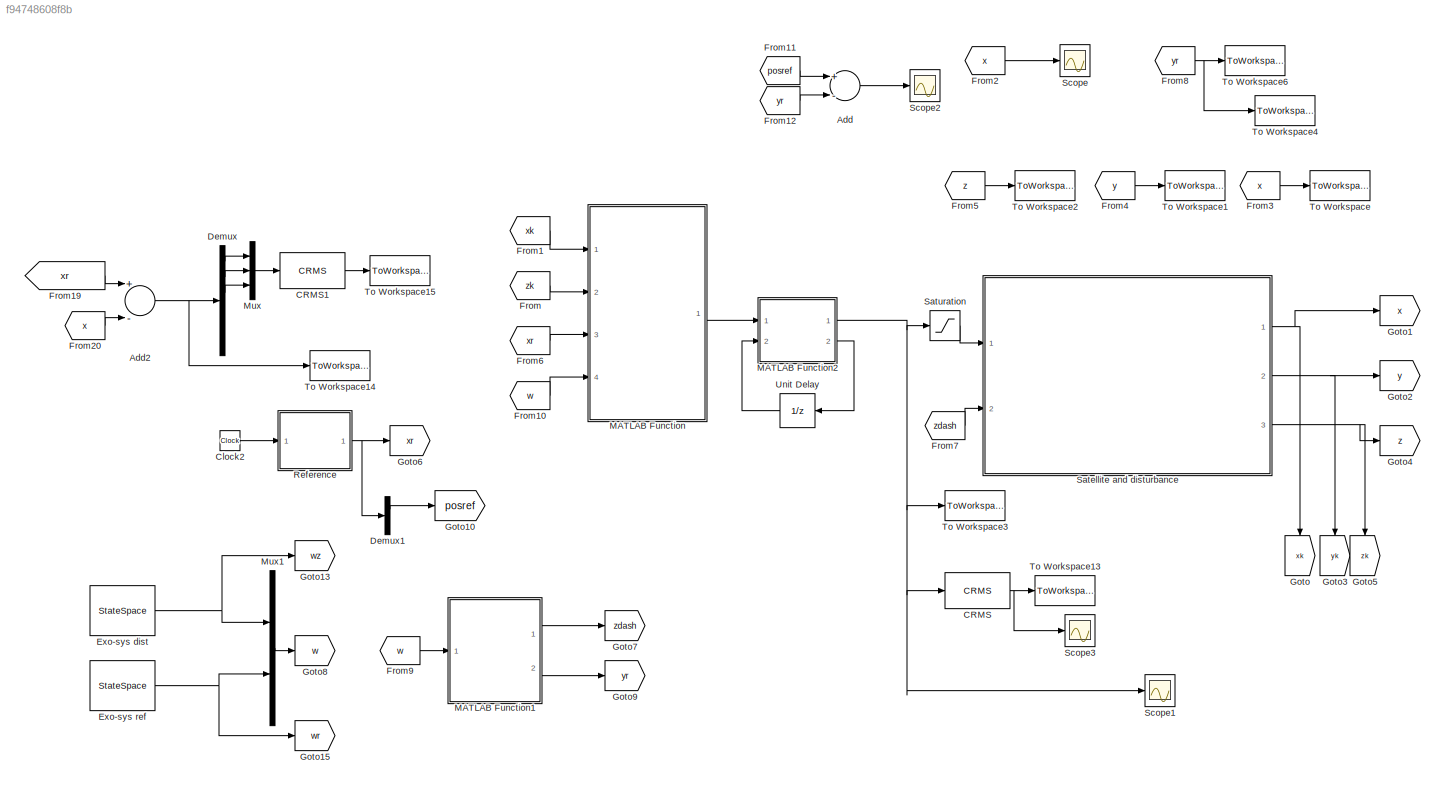
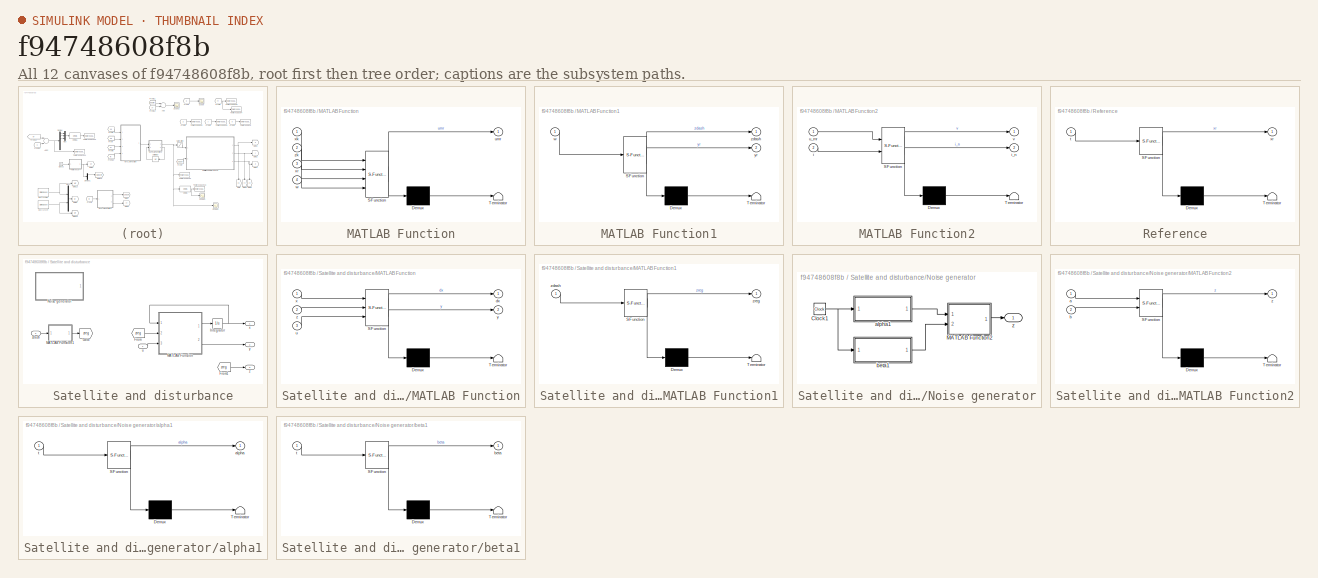
[diagram: thumbnail index - all 12 canvases of the model, root first then tree order]
MODEL slx_f94748608f8b
KIND model
CONFIG AbsTol = auto
CONFIG EnableMultiTasking = off
CONFIG FixedStep = 10^-4
CONFIG MaxStep = auto
CONFIG MinStep = auto
CONFIG RelTol = 1e-3
CONFIG SampleTimeConstraint = Unconstrained
CONFIG Solver = VariableStepAuto
CONFIG SolverName = VariableStepAuto
CONFIG StartTime = 0.0
CONFIG StopTime = simTime
BLOCK [Sum] Add
  InputSameDT = off
  Inputs = +-
  OutDataTypeStr = Inherit: Inherit via internal rule
  Ports = [2, 1]
  SaturateOnIntegerOverflow = off
BLOCK [Sum] Add2
  InputSameDT = off
  Inputs = +-
  OutDataTypeStr = Inherit: Inherit via internal rule
  Ports = [2, 1]
  SaturateOnIntegerOverflow = off
BLOCK [Reference] CRMS  REF=sdolib/RMS Blocks/CRMS
  Ports = [1, 1]
  SourceBlock = sdolib/RMS Blocks/CRMS
  SourceProductBaseCode = SO
  SourceProductName = Simulink Design Optimization
  SourceType = Continuous RMS Value Block
BLOCK [Reference] CRMS1  REF=sdolib/RMS Blocks/CRMS
  Ports = [1, 1]
  SourceBlock = sdolib/RMS Blocks/CRMS
  SourceProductBaseCode = SO
  SourceProductName = Simulink Design Optimization
  SourceType = Continuous RMS Value Block
BLOCK [Clock] Clock2
BLOCK [Demux] Demux
  DisplayOption = bar
  Outputs = 6
  Ports = [1, 6]
BLOCK [Demux] Demux1
  DisplayOption = bar
  Outputs = [3 3]
  Ports = [1, 2]
BLOCK [StateSpace] Exo-sys dist
  A = [0 -1;1 0]
  B = [0;0]
  C = eye(2)
  D = zeros(2,1)
  InitialCondition = [1;0]
  Ports = [1, 1]
BLOCK [StateSpace] Exo-sys ref 
  A = [0 -Omega;Omega 0]
  B = [0;0]
  C = eye(2)
  D = zeros(2,1)
  InitialCondition = [1;0]
  Ports = [1, 1]
BLOCK [From] From
  GotoTag = zk
BLOCK [From] From1
  GotoTag = xk
BLOCK [From] From10
  GotoTag = w
BLOCK [From] From11
  GotoTag = posref
BLOCK [From] From12
  GotoTag = yr
BLOCK [From] From19
  GotoTag = xr
BLOCK [From] From2
  GotoTag = x
BLOCK [From] From20
  GotoTag = x
BLOCK [From] From3
  GotoTag = x
BLOCK [From] From4
  GotoTag = y
BLOCK [From] From5
  GotoTag = z
BLOCK [From] From6
  GotoTag = xr
BLOCK [From] From7
  GotoTag = zdash
BLOCK [From] From8
  GotoTag = yr
BLOCK [From] From9
  GotoTag = w
BLOCK [Goto] Goto
  GotoTag = xk
BLOCK [Goto] Goto1
  GotoTag = x
BLOCK [Goto] Goto10
  GotoTag = posref
BLOCK [Goto] Goto13
  GotoTag = wz
BLOCK [Goto] Goto15
  GotoTag = wr
BLOCK [Goto] Goto2
  GotoTag = y
BLOCK [Goto] Goto3
  GotoTag = yk
BLOCK [Goto] Goto4
  GotoTag = z
BLOCK [Goto] Goto5
  GotoTag = zk
BLOCK [Goto] Goto6
  GotoTag = xr
BLOCK [Goto] Goto7
  GotoTag = zdash
BLOCK [Goto] Goto8
  GotoTag = w
BLOCK [Goto] Goto9
  GotoTag = yr
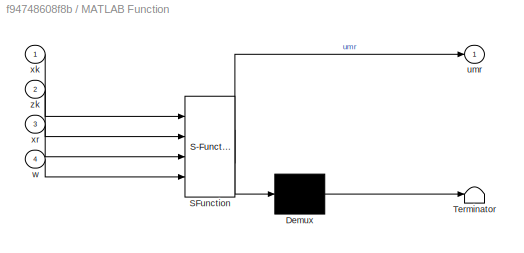
BLOCK [SubSystem] MATLAB Function
  ErrorFcn = Stateflow.Translate.translate
  PermitHierarchicalResolution = ExplicitOnly
  Ports = [4, 1]
  RequestExecContextInheritance = off
  SFBlockType = MATLAB Function
  SystemSampleTime = 2*delta
  TreatAsAtomicUnit = on
BLOCK [Demux] MATLAB Function/ Demux 
  Outputs = 1
  Ports = [1, 1]
BLOCK [S-Function] MATLAB Function/ SFunction 
  EnableBusSupport = on
  FunctionName = sf_sfun
  Parameters = A,G,K,L2,Omega,a,b,c,delta,disturbance,e,k,mu
  PortCounts = [4 2]
  Ports = [4, 2]
  SFcnIsStateOwnerBlock = off
  SFunctionDeploymentMode = off
  Tag = Stateflow S-Function 1
BLOCK [Terminator] MATLAB Function/ Terminator 
BLOCK [Outport] MATLAB Function/umr
  IconDisplay = Port number
BLOCK [Inport] MATLAB Function/w
  IconDisplay = Port number
  Port = 4
BLOCK [Inport] MATLAB Function/xk
  IconDisplay = Port number
BLOCK [Inport] MATLAB Function/xr
  IconDisplay = Port number
  Port = 3
BLOCK [Inport] MATLAB Function/zk
  IconDisplay = Port number
  Port = 2
BLOCK [SubSystem] MATLAB Function1
  ErrorFcn = Stateflow.Translate.translate
  PermitHierarchicalResolution = ExplicitOnly
  Ports = [1, 2]
  RequestExecContextInheritance = off
  SFBlockType = MATLAB Function
  TreatAsAtomicUnit = on
BLOCK [Demux] MATLAB Function1/ Demux 
  Outputs = 1
  Ports = [1, 1]
BLOCK [S-Function] MATLAB Function1/ SFunction 
  EnableBusSupport = on
  FunctionName = sf_sfun
  Parameters = L2,Omega,a,b,c,e,k,mu
  PortCounts = [1 3]
  Ports = [1, 3]
  SFcnIsStateOwnerBlock = off
  SFunctionDeploymentMode = off
  Tag = Stateflow S-Function 10
BLOCK [Terminator] MATLAB Function1/ Terminator 
BLOCK [Inport] MATLAB Function1/w
  IconDisplay = Port number
BLOCK [Outport] MATLAB Function1/yr
  IconDisplay = Port number
  Port = 2
BLOCK [Outport] MATLAB Function1/zdash
  IconDisplay = Port number
BLOCK [SubSystem] MATLAB Function2
  ErrorFcn = Stateflow.Translate.translate
  PermitHierarchicalResolution = ExplicitOnly
  Ports = [2, 2]
  RequestExecContextInheritance = off
  SFBlockType = MATLAB Function
  SystemSampleTime = delta
  TreatAsAtomicUnit = on
BLOCK [Demux] MATLAB Function2/ Demux 
  Outputs = 1
  Ports = [1, 1]
BLOCK [S-Function] MATLAB Function2/ SFunction 
  EnableBusSupport = on
  FunctionName = sf_sfun
  PortCounts = [2 3]
  Ports = [2, 3]
  SFcnIsStateOwnerBlock = off
  SFunctionDeploymentMode = off
  Tag = Stateflow S-Function 3
BLOCK [Terminator] MATLAB Function2/ Terminator 
BLOCK [Inport] MATLAB Function2/i
  IconDisplay = Port number
  Port = 2
BLOCK [Outport] MATLAB Function2/i_n
  IconDisplay = Port number
  Port = 2
  VectorParamsAs1DForOutWhenUnconnected = off
BLOCK [Inport] MATLAB Function2/u_mr
  IconDisplay = Port number
BLOCK [Outport] MATLAB Function2/v
  IconDisplay = Port number
  VectorParamsAs1DForOutWhenUnconnected = off
BLOCK [Mux] Mux
  DisplayOption = bar
  Inputs = 3
  Ports = [3, 1]
BLOCK [Mux] Mux1
  DisplayOption = bar
  Inputs = 2
  Ports = [2, 1]
BLOCK [SubSystem] Reference
  ErrorFcn = Stateflow.Translate.translate
  PermitHierarchicalResolution = ExplicitOnly
  Ports = [1, 1]
  RequestExecContextInheritance = off
  SFBlockType = MATLAB Function
  TreatAsAtomicUnit = on
BLOCK [Demux] Reference/ Demux 
  Outputs = 1
  Ports = [1, 1]
BLOCK [S-Function] Reference/ SFunction 
  EnableBusSupport = on
  FunctionName = sf_sfun
  Parameters = L2,Omega,Omega_z,c,e,k
  PortCounts = [1 2]
  Ports = [1, 2]
  SFcnIsStateOwnerBlock = off
  SFunctionDeploymentMode = off
  Tag = Stateflow S-Function 5
BLOCK [Terminator] Reference/ Terminator 
BLOCK [Inport] Reference/t
  IconDisplay = Port number
BLOCK [Outport] Reference/xr
  IconDisplay = Port number
BLOCK [SubSystem] Satellite and disturbance
  Ports = [2, 3]
  RequestExecContextInheritance = off
BLOCK [From] Satellite and disturbance/From
  GotoTag = zreg
BLOCK [From] Satellite and disturbance/From1
  GotoTag = zreg
BLOCK [Goto] Satellite and disturbance/Goto
  GotoTag = zreg
BLOCK [Integrator] Satellite and disturbance/Integrator
  InitialCondition = x0
  Ports = [1, 1]
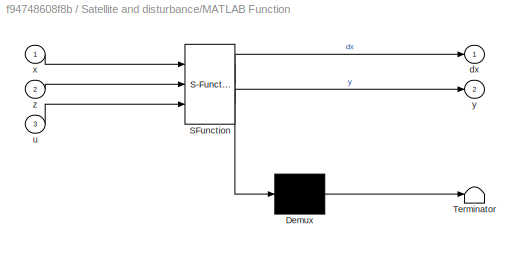
BLOCK [SubSystem] Satellite and disturbance/MATLAB Function
  ErrorFcn = Stateflow.Translate.translate
  PermitHierarchicalResolution = ExplicitOnly
  Ports = [3, 2]
  RequestExecContextInheritance = off
  SFBlockType = MATLAB Function
  TreatAsAtomicUnit = on
BLOCK [Demux] Satellite and disturbance/MATLAB Function/ Demux 
  Outputs = 1
  Ports = [1, 1]
BLOCK [S-Function] Satellite and disturbance/MATLAB Function/ SFunction 
  EnableBusSupport = on
  FunctionName = sf_sfun
  Parameters = mu
  PortCounts = [3 3]
  Ports = [3, 3]
  SFcnIsStateOwnerBlock = off
  SFunctionDeploymentMode = off
  Tag = Stateflow S-Function 2
BLOCK [Terminator] Satellite and disturbance/MATLAB Function/ Terminator 
BLOCK [Outport] Satellite and disturbance/MATLAB Function/dx
  IconDisplay = Port number
BLOCK [Inport] Satellite and disturbance/MATLAB Function/u
  IconDisplay = Port number
  Port = 3
BLOCK [Inport] Satellite and disturbance/MATLAB Function/x
  IconDisplay = Port number
BLOCK [Outport] Satellite and disturbance/MATLAB Function/y
  IconDisplay = Port number
  Port = 2
BLOCK [Inport] Satellite and disturbance/MATLAB Function/z
  IconDisplay = Port number
  Port = 2
BLOCK [SubSystem] Satellite and disturbance/MATLAB Function1
  ErrorFcn = Stateflow.Translate.translate
  PermitHierarchicalResolution = ExplicitOnly
  Ports = [1, 1]
  RequestExecContextInheritance = off
  SFBlockType = MATLAB Function
  TreatAsAtomicUnit = on
BLOCK [Demux] Satellite and disturbance/MATLAB Function1/ Demux 
  Outputs = 1
  Ports = [1, 1]
BLOCK [S-Function] Satellite and disturbance/MATLAB Function1/ SFunction 
  EnableBusSupport = on
  FunctionName = sf_sfun
  Parameters = disturbance
  PortCounts = [1 2]
  Ports = [1, 2]
  SFcnIsStateOwnerBlock = off
  SFunctionDeploymentMode = off
  Tag = Stateflow S-Function 4
BLOCK [Terminator] Satellite and disturbance/MATLAB Function1/ Terminator 
BLOCK [Inport] Satellite and disturbance/MATLAB Function1/zdash
  IconDisplay = Port number
BLOCK [Outport] Satellite and disturbance/MATLAB Function1/zreg
  IconDisplay = Port number
BLOCK [SubSystem] Satellite and disturbance/Noise generator
  Ports = [0, 1]
  RequestExecContextInheritance = off
BLOCK [Clock] Satellite and disturbance/Noise generator/Clock1
BLOCK [SubSystem] Satellite and disturbance/Noise generator/MATLAB Function2
  ErrorFcn = Stateflow.Translate.translate
  PermitHierarchicalResolution = ExplicitOnly
  Ports = [2, 1]
  RequestExecContextInheritance = off
  SFBlockType = MATLAB Function
  TreatAsAtomicUnit = on
BLOCK [Demux] Satellite and disturbance/Noise generator/MATLAB Function2/ Demux 
  Outputs = 1
  Ports = [1, 1]
BLOCK [S-Function] Satellite and disturbance/Noise generator/MATLAB Function2/ SFunction 
  EnableBusSupport = on
  FunctionName = sf_sfun
  Parameters = disturbance,mu
  PortCounts = [2 2]
  Ports = [2, 2]
  SFcnIsStateOwnerBlock = off
  SFunctionDeploymentMode = off
  Tag = Stateflow S-Function 8
BLOCK [Terminator] Satellite and disturbance/Noise generator/MATLAB Function2/ Terminator 
BLOCK [Inport] Satellite and disturbance/Noise generator/MATLAB Function2/a
  IconDisplay = Port number
BLOCK [Inport] Satellite and disturbance/Noise generator/MATLAB Function2/b
  IconDisplay = Port number
  Port = 2
BLOCK [Outport] Satellite and disturbance/Noise generator/MATLAB Function2/z
  IconDisplay = Port number
BLOCK [SubSystem] Satellite and disturbance/Noise generator/alpha1
  ErrorFcn = Stateflow.Translate.translate
  PermitHierarchicalResolution = ExplicitOnly
  Ports = [1, 1]
  RequestExecContextInheritance = off
  SFBlockType = MATLAB Function
  TreatAsAtomicUnit = on
BLOCK [Demux] Satellite and disturbance/Noise generator/alpha1/ Demux 
  Outputs = 1
  Ports = [1, 1]
BLOCK [S-Function] Satellite and disturbance/Noise generator/alpha1/ SFunction 
  EnableBusSupport = on
  FunctionName = sf_sfun
  Parameters = a,e,phi
  PortCounts = [1 2]
  Ports = [1, 2]
  SFcnIsStateOwnerBlock = off
  SFunctionDeploymentMode = off
  Tag = Stateflow S-Function 6
BLOCK [Terminator] Satellite and disturbance/Noise generator/alpha1/ Terminator 
BLOCK [Outport] Satellite and disturbance/Noise generator/alpha1/alpha
  IconDisplay = Port number
BLOCK [Inport] Satellite and disturbance/Noise generator/alpha1/t
  IconDisplay = Port number
BLOCK [SubSystem] Satellite and disturbance/Noise generator/beta1
  ErrorFcn = Stateflow.Translate.translate
  PermitHierarchicalResolution = ExplicitOnly
  Ports = [1, 1]
  RequestExecContextInheritance = off
  SFBlockType = MATLAB Function
  TreatAsAtomicUnit = on
BLOCK [Demux] Satellite and disturbance/Noise generator/beta1/ Demux 
  Outputs = 1
  Ports = [1, 1]
BLOCK [S-Function] Satellite and disturbance/Noise generator/beta1/ SFunction 
  EnableBusSupport = on
  FunctionName = sf_sfun
  Parameters = b,e,phi
  PortCounts = [1 2]
  Ports = [1, 2]
  SFcnIsStateOwnerBlock = off
  SFunctionDeploymentMode = off
  Tag = Stateflow S-Function 7
BLOCK [Terminator] Satellite and disturbance/Noise generator/beta1/ Terminator 
BLOCK [Outport] Satellite and disturbance/Noise generator/beta1/beta
  IconDisplay = Port number
BLOCK [Inport] Satellite and disturbance/Noise generator/beta1/t
  IconDisplay = Port number
BLOCK [Outport] Satellite and disturbance/Noise generator/z
  IconDisplay = Port number
BLOCK [Inport] Satellite and disturbance/u
  IconDisplay = Port number
BLOCK [Outport] Satellite and disturbance/x
  IconDisplay = Port number
BLOCK [Outport] Satellite and disturbance/y
  IconDisplay = Port number
  Port = 2
BLOCK [Outport] Satellite and disturbance/z
  IconDisplay = Port number
  Port = 3
BLOCK [Inport] Satellite and disturbance/zdash 
  IconDisplay = Port number
  Port = 2
BLOCK [Saturate] Saturation
  InputPortMap = u0
  LowerLimit = -satValue
  Ports = [1, 1]
  UpperLimit = satValue
BLOCK [Scope] Scope
  Floating = off
  NumInputPorts = 1
  Ports = [1]
  ScopeSpecificationString = Simulink.scopes.TimeScopeBlockCfg('CurrentConfiguration', extmgr.ConfigurationSet(extmgr.Configuration('Core','General UI',true),extmgr.Configuration('Core','Source UI',true),extmgr.Configuration('Sources','WiredSimulink',true),extmgr.Configuration('Visuals','Time Domain',true,'SerializedDisplays',{struct('MinYLimReal','-1.99667','MaxYLimReal','4.66629','YLabelReal','','MinYLimMag','0.00000','MaxY...<+1509ch>
BLOCK [Scope] Scope1
  Floating = off
  NumInputPorts = 1
  Ports = [1]
  ScopeSpecificationString = Simulink.scopes.TimeScopeBlockCfg('CurrentConfiguration', extmgr.ConfigurationSet(extmgr.Configuration('Core','General UI',true),extmgr.Configuration('Core','Source UI',true),extmgr.Configuration('Sources','WiredSimulink',true,'DataLoggingVariableName','ScopeData1'),extmgr.Configuration('Visuals','Time Domain',true,'SerializedDisplays',{struct('MinYLimReal','-0.45424','MaxYLimReal','0.24391','YLab...<+1523ch>
BLOCK [Scope] Scope2
  Floating = off
  NumInputPorts = 1
  Ports = [1]
  ScopeSpecificationString = Simulink.scopes.TimeScopeBlockCfg('CurrentConfiguration', extmgr.ConfigurationSet(extmgr.Configuration('Core','General UI',true),extmgr.Configuration('Core','Source UI',true),extmgr.Configuration('Sources','WiredSimulink',true,'DataLoggingVariableName','ScopeData1'),extmgr.Configuration('Visuals','Time Domain',true,'SerializedDisplays',{struct('MinYLimReal','-0.25','MaxYLimReal','0.25','YLabelReal...<+1360ch>
BLOCK [Scope] Scope3
  Floating = off
  NumInputPorts = 1
  Ports = [1]
  ScopeSpecificationString = Simulink.scopes.TimeScopeBlockCfg('CurrentConfiguration', extmgr.ConfigurationSet(extmgr.Configuration('Core','General UI',true),extmgr.Configuration('Core','Source UI',true),extmgr.Configuration('Sources','WiredSimulink',true,'DataLoggingVariableName','ScopeData1'),extmgr.Configuration('Visuals','Time Domain',true,'SerializedDisplays',{struct('MinYLimReal','-1.70002','MaxYLimReal','15.30022','YLa...<+1421ch>
BLOCK [ToWorkspace] To Workspace
  FixptAsFi = on
  MaxDataPoints = inf
  Ports = [1]
  SampleTime = 10^-3
  VariableName = x
BLOCK [ToWorkspace] To Workspace1
  FixptAsFi = on
  MaxDataPoints = inf
  Ports = [1]
  SampleTime = 10^-3
  VariableName = y
BLOCK [ToWorkspace] To Workspace13
  FixptAsFi = on
  MaxDataPoints = inf
  Ports = [1]
  SampleTime = 10^-3
  VariableName = DeltaV
BLOCK [ToWorkspace] To Workspace14
  FixptAsFi = on
  MaxDataPoints = inf
  Ports = [1]
  SampleTime = 10^-3
  VariableName = error
BLOCK [ToWorkspace] To Workspace15
  FixptAsFi = on
  MaxDataPoints = inf
  Ports = [1]
  SampleTime = delta
  VariableName = e_rms
BLOCK [ToWorkspace] To Workspace2
  FixptAsFi = on
  MaxDataPoints = inf
  Ports = [1]
  SampleTime = 10^-3
  VariableName = z
BLOCK [ToWorkspace] To Workspace3
  FixptAsFi = on
  MaxDataPoints = inf
  Ports = [1]
  SampleTime = 10^-3
  VariableName = u
BLOCK [ToWorkspace] To Workspace4
  FixptAsFi = on
  MaxDataPoints = inf
  Ports = [1]
  SampleTime = 10^-3
  VariableName = n_ref
BLOCK [ToWorkspace] To Workspace6
  FixptAsFi = on
  MaxDataPoints = inf
  Ports = [1]
  SampleTime = 10^-3
  VariableName = xr
BLOCK [UnitDelay] Unit Delay
  HasFrameUpgradeWarning = on
  InitialCondition = 1
  SampleTime = delta
NET Add2:1 -> Demux:1, To Workspace14:1
LINE Add:1 -> Scope2:1
LINE CRMS1:1 -> To Workspace15:1
NET CRMS:1 -> Scope3:1, To Workspace13:1
LINE Clock2:1 -> Reference:1
LINE Demux1:1 -> Goto10:1
LINE Demux:1 -> Mux:1
LINE Demux:2 -> Mux:2
LINE Demux:3 -> Mux:3
NET Exo-sys dist:1 -> Goto13:1, Mux1:1
NET Exo-sys ref :1 -> Goto15:1, Mux1:2
LINE From10:1 -> MATLAB Function:4
LINE From11:1 -> Add:1
LINE From12:1 -> Add:2
LINE From19:1 -> Add2:1
LINE From1:1 -> MATLAB Function:1
LINE From20:1 -> Add2:2
LINE From2:1 -> Scope:1
LINE From3:1 -> To Workspace:1
LINE From4:1 -> To Workspace1:1
LINE From5:1 -> To Workspace2:1
LINE From6:1 -> MATLAB Function:3
LINE From7:1 -> Satellite and disturbance:2
NET From8:1 -> To Workspace4:1, To Workspace6:1
LINE From9:1 -> MATLAB Function1:1
LINE From:1 -> MATLAB Function:2
LINE MATLAB Function1:1 -> Goto7:1
LINE MATLAB Function1:2 -> Goto9:1
NET MATLAB Function2:1 -> CRMS:1, Saturation:1, Scope1:1, To Workspace3:1
LINE MATLAB Function2:2 -> Unit Delay:1
LINE MATLAB Function:1 -> MATLAB Function2:1
LINE Mux1:1 -> Goto8:1
LINE Mux:1 -> CRMS1:1
NET Reference:1 -> Demux1:1, Goto6:1
LINE Satellite and disturbance/From1:1 -> Satellite and disturbance/z:1
LINE Satellite and disturbance/From:1 -> Satellite and disturbance/MATLAB Function:2
NET Satellite and disturbance/Integrator:1 -> Satellite and disturbance/MATLAB Function:1, Satellite and disturbance/x:1
LINE Satellite and disturbance/MATLAB Function1:1 -> Satellite and disturbance/Goto:1
LINE Satellite and disturbance/MATLAB Function:1 -> Satellite and disturbance/Integrator:1
LINE Satellite and disturbance/MATLAB Function:2 -> Satellite and disturbance/y:1
NET Satellite and disturbance/Noise generator/Clock1:1 -> Satellite and disturbance/Noise generator/alpha1:1, Satellite and disturbance/Noise generator/beta1:1
LINE Satellite and disturbance/Noise generator/MATLAB Function2:1 -> Satellite and disturbance/Noise generator/z:1
LINE Satellite and disturbance/Noise generator/alpha1:1 -> Satellite and disturbance/Noise generator/MATLAB Function2:1
LINE Satellite and disturbance/Noise generator/beta1:1 -> Satellite and disturbance/Noise generator/MATLAB Function2:2
LINE Satellite and disturbance/u:1 -> Satellite and disturbance/MATLAB Function:3
LINE Satellite and disturbance/zdash :1 -> Satellite and disturbance/MATLAB Function1:1
NET Satellite and disturbance:1 -> Goto1:1, Goto:1
NET Satellite and disturbance:2 -> Goto2:1, Goto3:1
NET Satellite and disturbance:3 -> Goto4:1, Goto5:1
LINE Saturation:1 -> Satellite and disturbance:1
LINE Unit Delay:1 -> MATLAB Function2:2
note: NET lines group one-source signal fan-out (src -> all destinations, sorted); 1:1 wires keep LINE
CHART MATLAB Function states=1 transitions=1
  STATE_LABEL 'eML_blk_kernel()'
  STATE_LABEL 'SCRIPT:\nfunction umr = mrcontrol(xk,zk,xr, mu,delta, w, A, G, K, L2, disturbance, Omega, b, a, e, k, c)\n%umr = [0 0;0 0;0 0];\n\ndelta_b = delta;\nx1 = xk(1:3);\nx2 = xk(4:6);\n\nM = [-1 0 0;\n    0 -1 0;\n    0 0 0];\n\nN = [0 -1 0;\n    1 0 0;\n    0 0 0];\n% zk  = zeros(4,1);\nd1r = [-mu - zk(4)/(1-mu);0;0];\nd2r = [1-mu + zk(4)/mu;0;0];\n\ned1 = x1 - d1r;\nabsed1 = sqrt(ed1(1)^2+ed1(2)^2+ed1(3)^2);\ned2 = x1 - d...<+1220ch>'
CHART Satellite and disturbance/MATLAB Function states=1 transitions=1
  STATE_LABEL 'eML_blk_kernel()'
  STATE_LABEL 'SCRIPT:\nfunction [dx, y] = Satellite(x,z, u, mu)\n\nx1 = x(1:3);\nx2 = x(4:6);\n\nM = [-1 0 0;\n    0 -1 0;\n    0 0 0];\n\nN = [0 -1 0;\n    1 0 0;\n    0 0 0];\n\nd1r = [-mu - z(4)/(1-mu);0;0];\nd2r = [1-mu + z(4)/mu;0;0];\n\ned1 = x1 - d1r;\nabsed1 = sqrt(ed1(1)^2+ed1(2)^2+ed1(3)^2);\ned2 = x1 - d2r;\nabsed2 = sqrt(ed2(1)^2+ed2(2)^2+ed2(3)^2);\n\nf1 = x2;\nf2 = -M*x1 - 2*N*x2 - (2*M*x1 + 2*N*x2)*z(1) ...\n           ...<+145ch>'
CHART MATLAB Function2 states=1 transitions=1
  STATE_LABEL 'eML_blk_kernel()'
  STATE_LABEL 'SCRIPT:\nfunction [v,i_n] = fcn(u_mr, i)\nif i <2\n    i_n = i+1; \nelse\n    i_n = 1;\nend\n\nv = u_mr(:, i);\n'
CHART Satellite and disturbance/MATLAB Function1 states=1 transitions=1
  STATE_LABEL 'eML_blk_kernel()'
  STATE_LABEL 'SCRIPT:\nfunction zreg = fcn(zdash, disturbance)\n\nif disturbance == 1 \n    zreg = zdash;\nelse\n    zreg = zeros(4,1);\nend\n'
CHART Reference states=1 transitions=1
  STATE_LABEL 'eML_blk_kernel()'
  STATE_LABEL 'SCRIPT:\nfunction xr = refer(t,c,Omega,Omega_z,L2,k,e)\n%#codegen\n\n\nSeq = [L2;0;0;0;0;0];\nho1 = [(-k*(1-c(1)+Omega^2)/(2*Omega))*cos(Omega*t);\n       k*sin(Omega*t);\n       k*cos(Omega_z*t)];\n   \ndiffho1 = [(k*(1-c(1)+Omega^2)/2)*sin(Omega*t);\n           Omega*k*cos(Omega*t);\n           -Omega_z*k*sin(Omega_z*t)];\n      \n% Halo orbit reference type 1       \nxr = Seq;\nxr = xr + [ho1;diffho1];\n\n'
CHART Satellite and disturbance/Noise generator/alpha1 states=1 transitions=1
  STATE_LABEL 'eML_blk_kernel()'
  STATE_LABEL 'SCRIPT:\nfunction alpha = a(t,a,phi,e)\n%#codegen\na1 = a(1)*e*cos(t+phi);\n\nalpha = a1 + a(2)*e^2*(1+cos(2*(t+phi)));\n'
CHART Satellite and disturbance/Noise generator/beta1 states=1 transitions=1
  STATE_LABEL 'eML_blk_kernel()'
  STATE_LABEL 'SCRIPT:\nfunction beta = b(t,b,phi,e)\n%#codegen\nb1 = b(1)*e*cos(t+phi);\nbd = -b(1)*e*sin(t+phi);\n\nbeta = [b1 + b(2)*e^2*(1+cos(2*(t+phi)));\n         (1+cos(2*(t+phi)))*e^2*b(1)^2/2;\n         bd - 2*b(2)*e^2*sin(2*(t+phi))];\n'
CHART Satellite and disturbance/Noise generator/MATLAB Function2 states=1 transitions=1
  STATE_LABEL 'eML_blk_kernel()'
  STATE_LABEL 'SCRIPT:\nfunction z = z(a,b,mu,disturbance)\n%#codegen\n\nif disturbance == 1\n    z = [b;mu*(1-mu)*a];\nelse\n    z = zeros(4,1);\nend'
CHART MATLAB Function1 states=1 transitions=1
  STATE_LABEL 'eML_blk_kernel()'
  STATE_LABEL 'SCRIPT:\nfunction [zdash,yr] = fcn(w, c, Omega, k, a, b, mu, e, L2)\n\nSeq = [L2;0;0];\n\nT1 = [b(1)*e 0;0 0;0 -b(1)*e;mu*(1-mu)*a(1)*e 0];\nQ1 = [k*(1-c(1)+Omega^2)/(2*Omega) 0;0 -k;-k 0];\n\nzdash = T1*w(1:2);\nyr = Q1*w(3:4) + Seq;\n\n'
